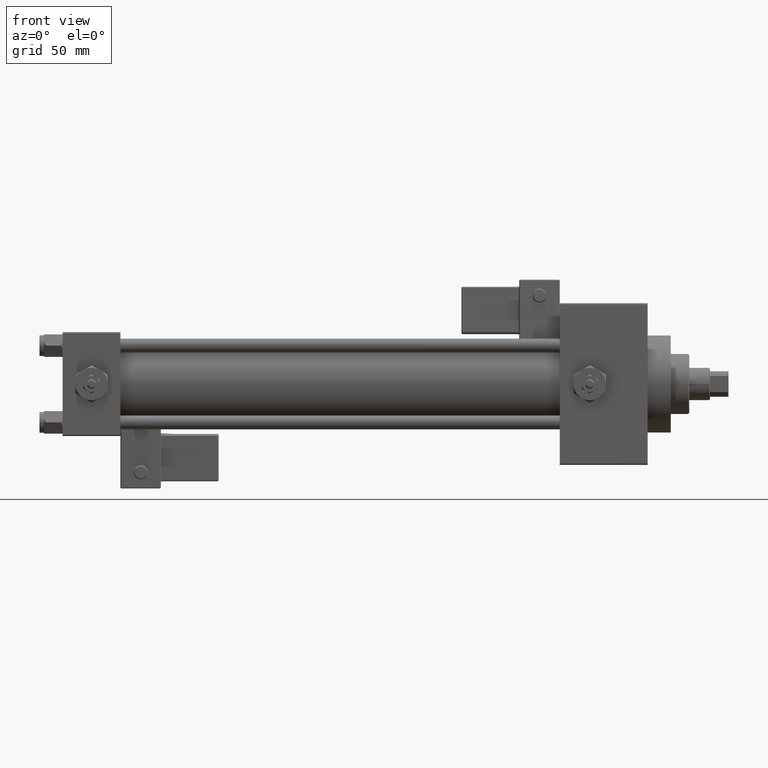
[diagram: clean part render]
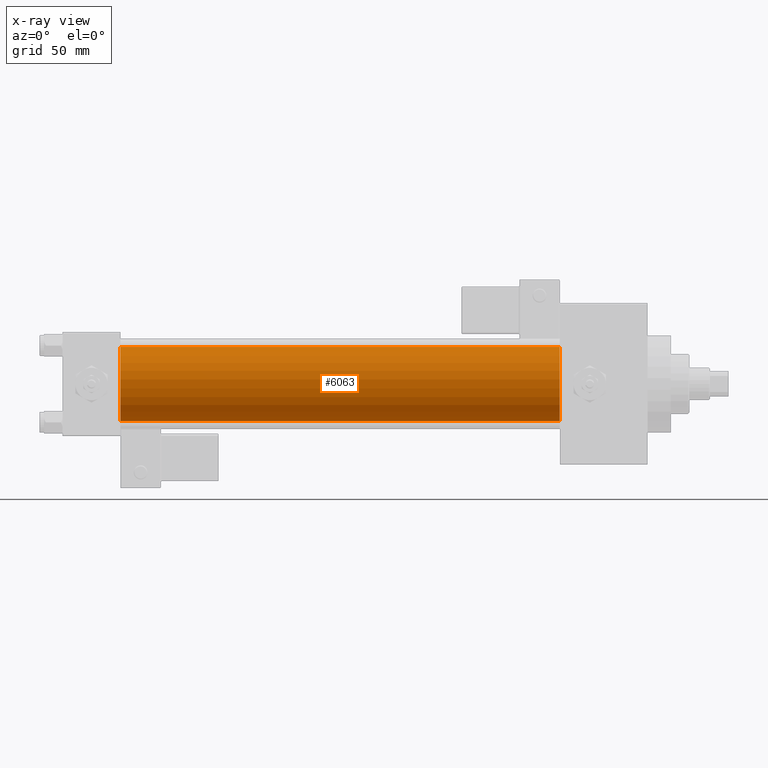
[diagram: x-ray — body ghosted, one internal face saturated and labeled with its STEP entity id]
A machine part, front view, then the same camera in x-ray: the body is ghosted and one INTERNAL B-rep face — a face not visible from any outside direction — is saturated and labeled: STEP entity #6063.
In plain terms, the highlighted cylindrical surface (partial cylindrical patch) has radius 16 mm, axis along (-1, -0, -0).
Its self-contained STEP definition (entity closure, byte-faithful):
#1506 = VERTEX_POINT ( 'NONE', #15919 ) ;
#1518 = DIRECTION ( 'NONE',  ( 0.000000000000000000, 0.000000000000000000, -1.000000000000000000 ) ) ;
#1890 = ORIENTED_EDGE ( 'NONE', *, *, #6923, .T. ) ;
#3087 = CARTESIAN_POINT ( 'NONE',  ( 25.00000000000000000, -6.426503353294456087E-16, -16.00000000000000000 ) ) ;
#3597 = CARTESIAN_POINT ( 'NONE',  ( 215.0000000000000000, -2.602085213965210642E-15, 0.000000000000000000 ) ) ;
#4098 = DIRECTION ( 'NONE',  ( 0.000000000000000000, 0.000000000000000000, 1.000000000000000000 ) ) ;
#6063 = ADVANCED_FACE ( 'NONE', ( #35531 ), #47449, .F. ) ;
#6923 = EDGE_CURVE ( 'NONE', #1506, #16949, #35375, .T. ) ;
#9039 = VERTEX_POINT ( 'NONE', #50116 ) ;
#12156 = CARTESIAN_POINT ( 'NONE',  ( 25.00000000000000000, -2.602085213965210642E-15, 0.000000000000000000 ) ) ;
#12948 = EDGE_LOOP ( 'NONE', ( #45940, #1890, #51246, #24559 ) ) ;
#13226 = EDGE_CURVE ( 'NONE', #23609, #9039, #30374, .T. ) ;
#14009 = AXIS2_PLACEMENT_3D ( 'NONE', #12156, #31636, #23847 ) ;
#15033 = AXIS2_PLACEMENT_3D ( 'NONE', #3597, #39660, #4098 ) ;
#15891 = VECTOR ( 'NONE', #30707, 1000.000000000000000 ) ;
#15919 = CARTESIAN_POINT ( 'NONE',  ( 215.0000000000000000, -6.426503353294456087E-16, -16.00000000000000000 ) ) ;
#16949 = VERTEX_POINT ( 'NONE', #3087 ) ;
#17369 = DIRECTION ( 'NONE',  ( 1.000000000000000000, 0.000000000000000000, 0.000000000000000000 ) ) ;
#18911 = CIRCLE ( 'NONE', #47933, 16.00000000000000000 ) ;
#21446 = CIRCLE ( 'NONE', #14009, 16.00000000000000000 ) ;
#23609 = VERTEX_POINT ( 'NONE', #30485 ) ;
#23847 = DIRECTION ( 'NONE',  ( 0.000000000000000000, 0.000000000000000000, -1.000000000000000000 ) ) ;
#24147 = CARTESIAN_POINT ( 'NONE',  ( 215.0000000000000000, -2.602085213965210642E-15, 0.000000000000000000 ) ) ;
#24559 = ORIENTED_EDGE ( 'NONE', *, *, #13226, .F. ) ;
#26477 = CARTESIAN_POINT ( 'NONE',  ( 215.0000000000000000, -2.602085213965210642E-15, 16.00000000000000000 ) ) ;
#30374 = LINE ( 'NONE', #26477, #40992 ) ;
#30485 = CARTESIAN_POINT ( 'NONE',  ( 215.0000000000000000, -2.602085213965210642E-15, 16.00000000000000000 ) ) ;
#30707 = DIRECTION ( 'NONE',  ( -1.000000000000000000, -0.000000000000000000, -0.000000000000000000 ) ) ;
#31636 = DIRECTION ( 'NONE',  ( 1.000000000000000000, 0.000000000000000000, 0.000000000000000000 ) ) ;
#35375 = LINE ( 'NONE', #50938, #15891 ) ;
#35531 = FACE_OUTER_BOUND ( 'NONE', #12948, .T. ) ;
#35720 = EDGE_CURVE ( 'NONE', #23609, #1506, #18911, .T. ) ;
#37580 = EDGE_CURVE ( 'NONE', #9039, #16949, #21446, .T. ) ;
#39660 = DIRECTION ( 'NONE',  ( -1.000000000000000000, -0.000000000000000000, -0.000000000000000000 ) ) ;
#40992 = VECTOR ( 'NONE', #45158, 1000.000000000000000 ) ;
#45158 = DIRECTION ( 'NONE',  ( -1.000000000000000000, -0.000000000000000000, -0.000000000000000000 ) ) ;
#45940 = ORIENTED_EDGE ( 'NONE', *, *, #35720, .T. ) ;
#47449 = CYLINDRICAL_SURFACE ( 'NONE', #15033, 16.00000000000000000 ) ;
#47933 = AXIS2_PLACEMENT_3D ( 'NONE', #24147, #17369, #1518 ) ;
#50116 = CARTESIAN_POINT ( 'NONE',  ( 25.00000000000000000, -2.602085213965210642E-15, 16.00000000000000000 ) ) ;
#50938 = CARTESIAN_POINT ( 'NONE',  ( 215.0000000000000000, -6.426503353294456087E-16, -16.00000000000000000 ) ) ;
#51246 = ORIENTED_EDGE ( 'NONE', *, *, #37580, .F. ) ;